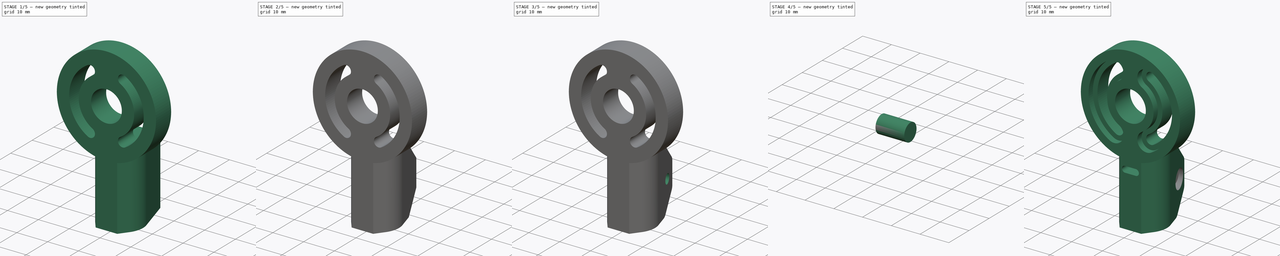
[diagram: build sequence overview — one tinted view per stage of 5, left to right]
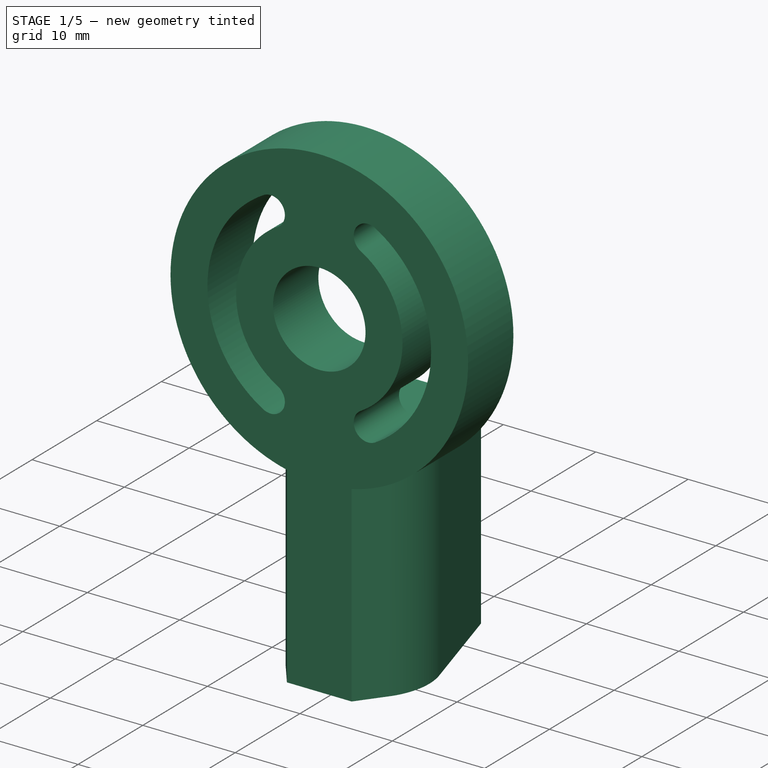
[diagram: stage 1 of 5 — iso view after this stage's code; geometry added in this stage tinted green]
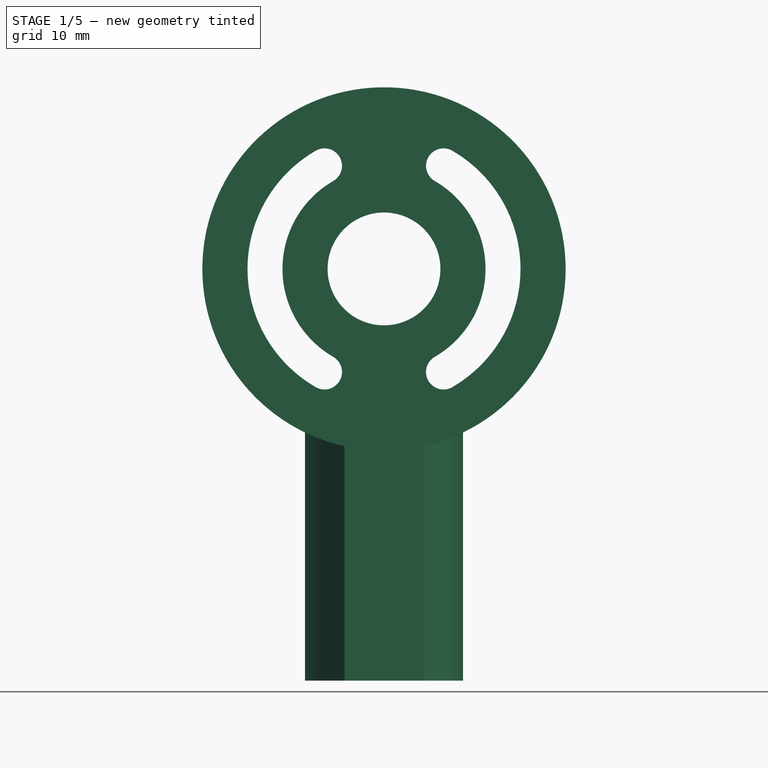
[diagram: stage 1 of 5 — front view after this stage's code; geometry added in this stage tinted green]
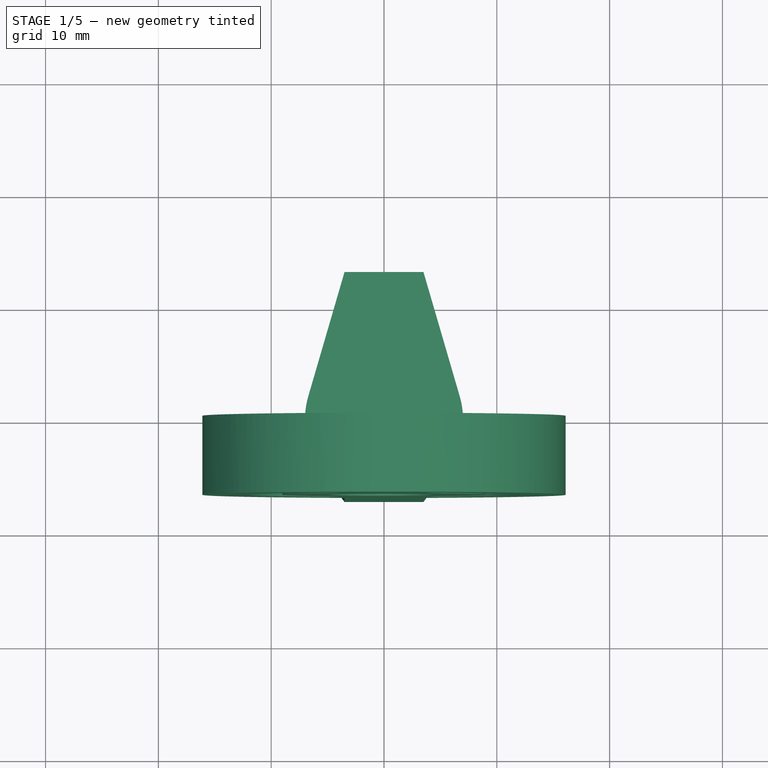
[diagram: stage 1 of 5 — top view after this stage's code; geometry added in this stage tinted green]
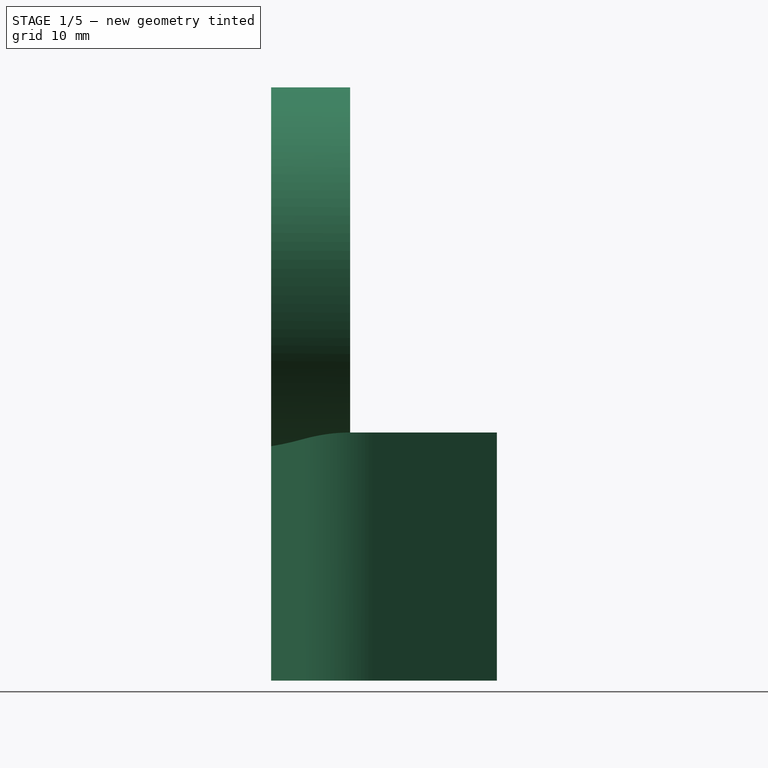
[diagram: stage 1 of 5 — right view after this stage's code; geometry added in this stage tinted green]
FCSTD DOCUMENT  (FreeCAD 0.16RUnknown)
Label: joint-i.007
License: All rights reserved
LicenseURL: http://en.wikipedia.org/wiki/All_rights_reserved
objects: Sketcher::SketchObject×11, PartDesign::Pocket×7, Part::Extrusion×4, Part::Cut×2, Part::MultiFuse×1, Part::Chamfer×1, Part::Fillet×1
note: 34 computed .brp shape members not serialized (recipe doc carries the construction recipe); baked Part::Feature solids carry a one-line shape summary decoded from their .brp

FEATURE [Sketcher::SketchObject] Sketch
  sketch-geometry (12):
    g0: Circle [constr] CenterX=0 CenterY=0 CenterZ=0 NormalX=0 NormalY=0 NormalZ=1 Radius=5
    g1: ArcOfCircle CenterX=0 CenterY=0 CenterZ=0 NormalX=0 NormalY=0 NormalZ=1 Radius=7 StartAngle=2.8578 EndAngle=3.78509
    g2: LineSegment [constr] StartX=5 StartY=0 StartZ=0 EndX=7 EndY=0 EndZ=0
    g3: LineSegment StartX=-6.72 StartY=1.96 StartZ=0 EndX=-3.5 EndY=13 EndZ=0
    g4: LineSegment StartX=-3.5 StartY=13 StartZ=0 EndX=3.5 EndY=13 EndZ=0
    g5: LineSegment StartX=3.5 StartY=13 StartZ=0 EndX=6.72 EndY=1.96 EndZ=0
    g6: LineSegment StartX=-5.60002 StartY=-4.19998 StartZ=0 EndX=-3.5 EndY=-7 EndZ=0
    g7: LineSegment StartX=-3.5 StartY=-7 StartZ=0 EndX=3.5 EndY=-7 EndZ=0
    g8: LineSegment StartX=3.5 StartY=-7 StartZ=0 EndX=5.60002 EndY=-4.19998 EndZ=0
    g9: ArcOfCircle CenterX=0 CenterY=0 CenterZ=0 NormalX=0 NormalY=0 NormalZ=1 Radius=7 StartAngle=5.63969 EndAngle=6.56698
    g10: LineSegment [constr] StartX=-7 StartY=0 StartZ=0 EndX=-5 EndY=0 EndZ=0
    g11: LineSegment [constr] StartX=0 StartY=-5 StartZ=0 EndX=0 EndY=-7 EndZ=0
  constraints (39):
    c: Coincident(g0,g-1)
    c: Radius(g0) = 5
    c: Horizontal(g2)
    c: PointOnObject(g2,g0)
    c: PointOnObject(g2,g1)
    c: PointOnObject(g2,g-1)
    c: DistanceX(g2,g2) = 2
    c: Coincident(g3,g4)
    c: Horizontal(g4)
    c: Coincident(g4,g5)
    c: DistanceX(g4,g4) = 7
    c: DistanceY(g-1,g3) = 13
    c: Tangent(g5,g1)
    c: Equal(g3,g5)
    c: Coincident(g1,g3)
    c: Tangent(g3,g1)
    c: Coincident(g9,g5)
    c: Coincident(g0,g1)
    c: Coincident(g6,g7)
    c: Horizontal(g7)
    c: Coincident(g7,g8)
    c: Equal(g6,g8)
    c: Equal(g7,g4)
    c: Tangent(g6,g1)
    c: Tangent(g8,g1)
    c: Equal(g1,g9)
    c: Coincident(g9,g8)
    c: Coincident(g1,g9)
    c: Coincident(g1,g6)
    c: Horizontal(g10)
    c: PointOnObject(g10,g0)
    c: PointOnObject(g10,g1)
    c: PointOnObject(g10,g-1)
    c: Equal(g10,g2)
    c: Vertical(g11)
    c: PointOnObject(g11,g0)
    c: PointOnObject(g11,g7)
    c: PointOnObject(g11,g-2)
    c: Equal(g11,g2)
FEATURE [Part::Extrusion] Extrude
  Base = -> Sketch
  Dir = (0,0,22)
  Solid = true
FEATURE [Sketcher::SketchObject] Sketch001
  Placement = pos=(0,0,0) rot=(1,0,0;1.5708rad)
  sketch-geometry (27):
    g0: Circle CenterX=0 CenterY=36.4986 CenterZ=0 NormalX=0 NormalY=0 NormalZ=1 Radius=5
    g1: Circle CenterX=0 CenterY=36.4986 CenterZ=0 NormalX=0 NormalY=0 NormalZ=1 Radius=16.1
    g2: ArcOfCircle CenterX=0 CenterY=36.4986 CenterZ=0 NormalX=0 NormalY=0 NormalZ=1 Radius=9 StartAngle=2.0944 EndAngle=4.18879
    g3: ArcOfCircle CenterX=0 CenterY=36.4986 CenterZ=0 NormalX=0 NormalY=0 NormalZ=1 Radius=12.1 StartAngle=2.0944 EndAngle=4.18879
    g4: ArcOfCircle CenterX=0 CenterY=36.4986 CenterZ=0 NormalX=0 NormalY=0 NormalZ=1 Radius=9 StartAngle=5.23599 EndAngle=7.33038
    g5: ArcOfCircle CenterX=0 CenterY=36.4986 CenterZ=0 NormalX=0 NormalY=0 NormalZ=1 Radius=12.1 StartAngle=5.23599 EndAngle=7.33038
    g6: ArcOfCircle [constr] CenterX=0 CenterY=36.4986 CenterZ=0 NormalX=0 NormalY=0 NormalZ=1 Radius=9 StartAngle=1.0472 EndAngle=2.0944
    g7: ArcOfCircle [constr] CenterX=0 CenterY=36.4986 CenterZ=0 NormalX=0 NormalY=0 NormalZ=1 Radius=12.1 StartAngle=1.0472 EndAngle=2.0944
    g8: ArcOfCircle [constr] CenterX=0 CenterY=36.4986 CenterZ=0 NormalX=0 NormalY=0 NormalZ=1 Radius=9 StartAngle=4.18879 EndAngle=5.23599
    g9: ArcOfCircle [constr] CenterX=0 CenterY=36.4986 CenterZ=0 NormalX=0 NormalY=0 NormalZ=1 Radius=12.1 StartAngle=4.18879 EndAngle=5.23599
    g10: LineSegment [constr] StartX=-6.05 StartY=26.0197 StartZ=0 EndX=-4.5 EndY=28.7044 EndZ=0
    g11: LineSegment [constr] StartX=-4.5 StartY=28.7044 StartZ=0 EndX=0 EndY=36.4986 EndZ=0
    g12: LineSegment [constr] StartX=0 StartY=36.4986 StartZ=0 EndX=2.5 EndY=40.8287 EndZ=0
    g13: LineSegment [constr] StartX=2.5 StartY=40.8287 StartZ=0 EndX=4.5 EndY=44.2928 EndZ=0
    g14: LineSegment [constr] StartX=4.5 StartY=44.2928 StartZ=0 EndX=6.05 EndY=46.9775 EndZ=0
    g15: LineSegment [constr] StartX=6.05 StartY=46.9775 StartZ=0 EndX=8.05 EndY=50.4416 EndZ=0
    g16: LineSegment [constr] StartX=-6.05 StartY=46.9775 StartZ=0 EndX=-4.5 EndY=44.2928 EndZ=0
    g17: LineSegment [constr] StartX=-4.5 StartY=44.2928 StartZ=0 EndX=0 EndY=36.4986 EndZ=0
    g18: LineSegment [constr] StartX=0 StartY=36.4986 StartZ=0 EndX=4.5 EndY=28.7044 EndZ=0
    g19: LineSegment [constr] StartX=4.5 StartY=28.7044 StartZ=0 EndX=6.05 EndY=26.0197 EndZ=0
    g20: LineSegment [constr] StartX=-4.5 StartY=44.2928 StartZ=0 EndX=4.5 EndY=44.2928 EndZ=0
    g21: ArcOfCircle CenterX=-5.275 CenterY=45.6352 CenterZ=0 NormalX=0 NormalY=0 NormalZ=1 Radius=1.55 StartAngle=5.23599 EndAngle=8.37758
    g22: ArcOfCircle CenterX=5.275 CenterY=45.6352 CenterZ=0 NormalX=0 NormalY=0 NormalZ=1 Radius=1.55 StartAngle=1.0472 EndAngle=4.18879
    g23: ArcOfCircle CenterX=-5.275 CenterY=27.3621 CenterZ=0 NormalX=0 NormalY=0 NormalZ=1 Radius=1.55 StartAngle=4.18879 EndAngle=7.33038
    g24: ArcOfCircle CenterX=5.275 CenterY=27.3621 CenterZ=0 NormalX=0 NormalY=0 NormalZ=1 Radius=1.55 StartAngle=2.0944 EndAngle=5.23599
    g25: LineSegment [constr] StartX=-7 StartY=22 StartZ=0 EndX=0 EndY=22 EndZ=0
    g26: LineSegment [constr] StartX=0 StartY=22 StartZ=0 EndX=7 EndY=22 EndZ=0
  constraints (74):
    c: Coincident(g0,g1)
    c: Coincident(g0,g2)
    c: Coincident(g0,g3)
    c: Coincident(g0,g4)
    c: Coincident(g0,g5)
    c: Coincident(g0,g6)
    c: Coincident(g0,g7)
    c: Coincident(g0,g8)
    c: Coincident(g0,g9)
    c: PointOnObject(g0,g-2)
    c: Coincident(g3,g7)
    c: Coincident(g2,g6)
    c: Coincident(g5,g7)
    c: Coincident(g4,g6)
    c: Coincident(g2,g8)
    c: Coincident(g3,g9)
    c: Coincident(g5,g9)
    c: Coincident(g4,g8)
    c: Coincident(g10,g11)
    c: Coincident(g11,g12)
    c: Coincident(g12,g13)
    c: Coincident(g13,g14)
    c: Coincident(g14,g15)
    c: Coincident(g3,g10)
    c: Coincident(g2,g10)
    c: Coincident(g4,g13)
    c: Coincident(g5,g14)
    c: PointOnObject(g15,g1)
    c: PointOnObject(g12,g0)
    c: Coincident(g16,g17)
    c: Coincident(g17,g18)
    c: Coincident(g18,g19)
    c: Coincident(g3,g16)
    c: Coincident(g2,g16)
    c: Coincident(g0,g11)
    c: Coincident(g0,g17)
    c: Coincident(g4,g18)
    c: Coincident(g5,g19)
    c: Parallel(g10,g11)
    c: Parallel(g11,g12)
    c: Parallel(g12,g13)
    c: Parallel(g13,g14)
    c: Parallel(g14,g15)
    c: Parallel(g16,g17)
    c: Parallel(g17,g18)
    c: Parallel(g18,g19)
    c: Horizontal(g20)
    c: Coincident(g2,g20)
    c: Coincident(g4,g20)
    c: Equal(g13,g15)
    c: Distance(g14) = 3.1
    c: Distance(g15) = 4
    c: Angle(g12,g17) = 1.0472
    c: Radius(g0) = 5
    c: Coincident(g2,g23)
    c: Coincident(g3,g23)
    c: Coincident(g4,g24)
    c: Coincident(g5,g24)
    c: PointOnObject(g24,g19)
    c: PointOnObject(g23,g10)
    c: Coincident(g3,g21)
    c: Coincident(g2,g21)
    c: PointOnObject(g21,g16)
    c: Coincident(g5,g22)
    c: Coincident(g4,g22)
    c: PointOnObject(g22,g14)
    c: Horizontal(g25)
    c: Coincident(g25,g26)
    c: Horizontal(g26)
    c: Equal(g25,g26)
    c: PointOnObject(g25,g-2)
    c: DistanceX(g25,g26) = 14
    c: DistanceY(g-1,g25) = 22
    c: PointOnObject(g25,g1)
FEATURE [Part::Extrusion] Extrude001
  Base = -> Sketch001
  Dir = (0,-7,0)
  Solid = true
FEATURE [Part::MultiFuse] Fusion
  Shapes = -> [Extrude,Extrude001]
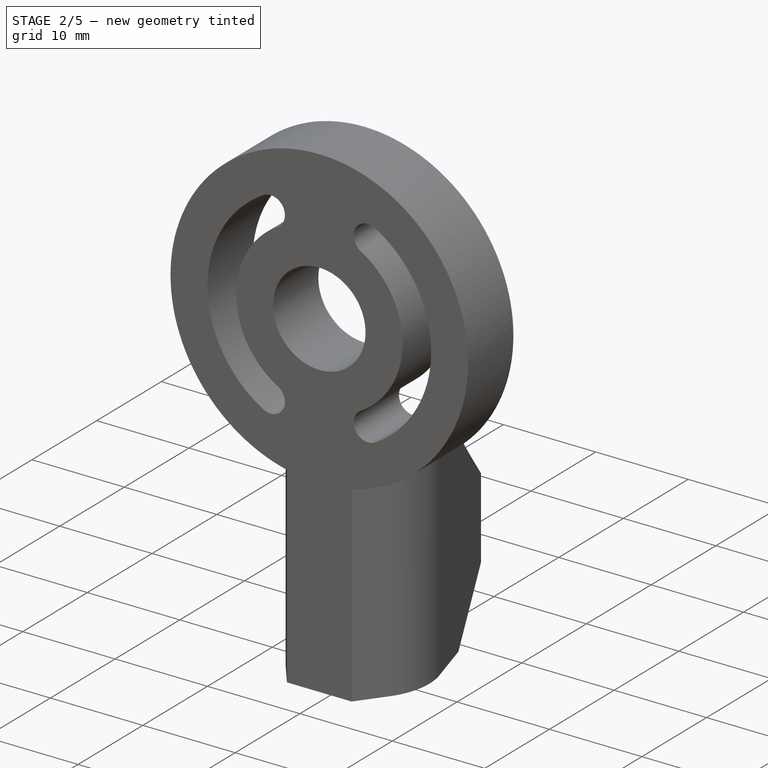
[diagram: stage 2 of 5 — iso view after this stage's code; geometry added in this stage tinted green]
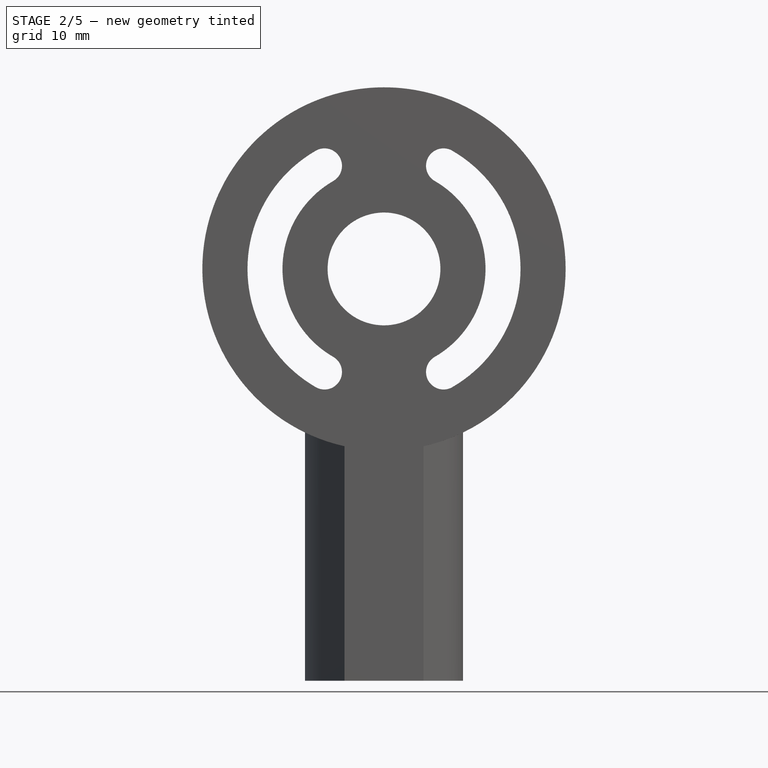
[diagram: stage 2 of 5 — front view after this stage's code; geometry added in this stage tinted green]
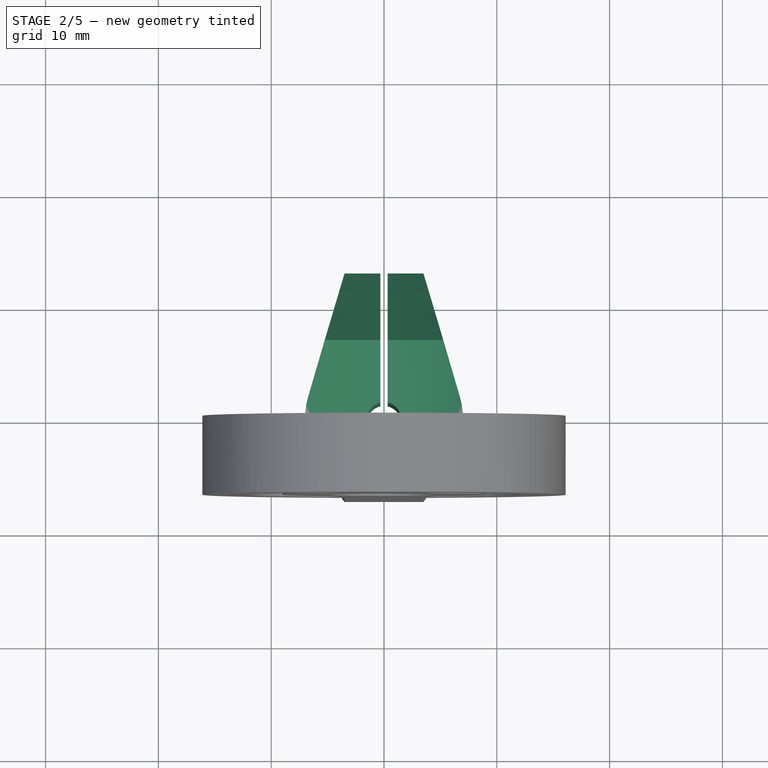
[diagram: stage 2 of 5 — top view after this stage's code; geometry added in this stage tinted green]
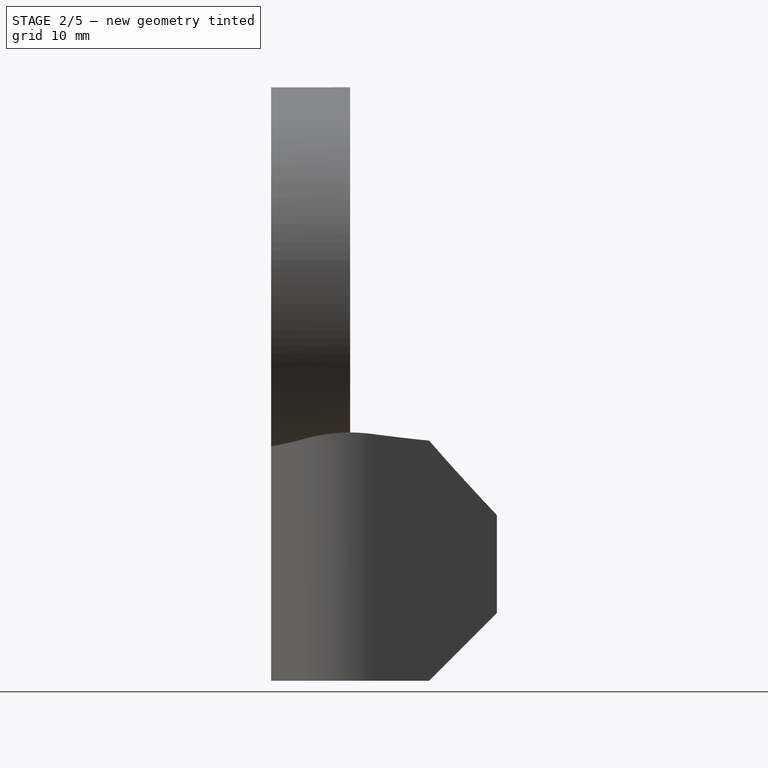
[diagram: stage 2 of 5 — right view after this stage's code; geometry added in this stage tinted green]
FEATURE [Sketcher::SketchObject] Sketch002
  ExternalGeometry = -> [Fusion]
  Placement = pos=(0,0,0) rot=(0,0.707107,0.707107;3.14159rad)
  Support = -> Fusion [Face14]
  sketch-geometry (2):
    g0: ArcOfCircle CenterX=0 CenterY=36.4986 CenterZ=0 NormalX=0 NormalY=0 NormalZ=1 Radius=16.1 StartAngle=4.26259 EndAngle=5.16219
    g1: LineSegment StartX=-7 StartY=22 StartZ=0 EndX=7 EndY=22 EndZ=0
  constraints (7):
    c: Coincident(g0,g-3)
    c: Coincident(g0,g-4)
    c: Coincident(g0,g-4)
    c: Coincident(g0,g-3)
    c: Horizontal(g1)
    c: Coincident(g0,g1)
    c: Coincident(g0,g1)
FEATURE [PartDesign::Pocket] Pocket
  Length = 5
  Reversed = true
  Sketch = -> Sketch002
  Type = 1
FEATURE [Sketcher::SketchObject] Sketch003
  ExternalGeometry = -> [Pocket]
  Placement = pos=(0,0,0) rot=(1,0,0;3.14159rad)
  Support = -> Pocket [Face1]
  sketch-geometry (7):
    g0: LineSegment StartX=-1.5 StartY=0 StartZ=0 EndX=1.5 EndY=0 EndZ=0
    g1: LineSegment StartX=-0.325 StartY=-13 StartZ=0 EndX=0.325 EndY=-13 EndZ=0
    g2: LineSegment StartX=0.325 StartY=-13 StartZ=0 EndX=0.325 EndY=-1.46437 EndZ=0
    g3: LineSegment [constr] StartX=0.325 StartY=-1.46437 StartZ=0 EndX=-0.325 EndY=-1.46437 EndZ=0
    g4: LineSegment StartX=-0.325 StartY=-1.46437 StartZ=0 EndX=-0.325 EndY=-13 EndZ=0
    g5: ArcOfCircle CenterX=0 CenterY=0 CenterZ=0 NormalX=0 NormalY=0 NormalZ=1 Radius=1.5 StartAngle=3.14159 EndAngle=4.49399
    g6: ArcOfCircle CenterX=0 CenterY=0 CenterZ=0 NormalX=0 NormalY=0 NormalZ=1 Radius=1.5 StartAngle=4.93079 EndAngle=6.28319
  constraints (20):
    c: Horizontal(g0)
    c: Coincident(g1,g2)
    c: Coincident(g2,g3)
    c: Coincident(g3,g4)
    c: Coincident(g4,g1)
    c: Horizontal(g1)
    c: Horizontal(g3)
    c: Vertical(g2)
    c: Vertical(g4)
    c: Coincident(g5,g6)
    c: Coincident(g5,g-1)
    c: Coincident(g0,g5)
    c: Coincident(g3,g5)
    c: Coincident(g2,g6)
    c: Coincident(g0,g6)
    c: PointOnObject(g0,g-1)
    c: PointOnObject(g1,g-3)
    c: DistanceX(g1,g1) = 0.65
    c: Equal(g6,g5)
    c: Radius(g6) = 1.5
FEATURE [PartDesign::Pocket] Pocket001
  Length = 5
  Sketch = -> Sketch003
  Type = 1
FEATURE [Part::Chamfer] Chamfer
  Base = -> Pocket001
  Edges = 4 edges r=6: [Edge2,Edge8,Edge19,Edge32]
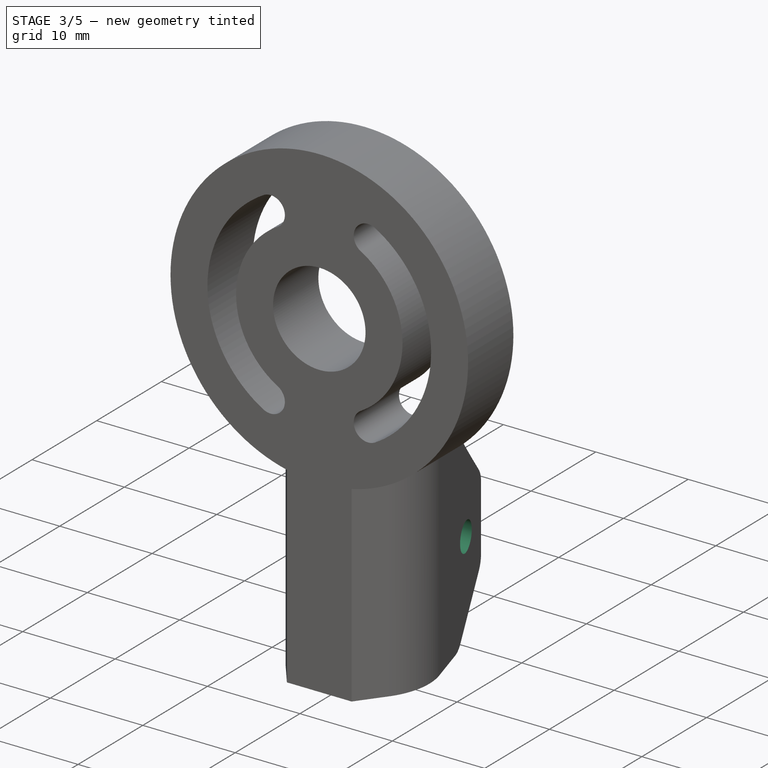
[diagram: stage 3 of 5 — iso view after this stage's code; geometry added in this stage tinted green]
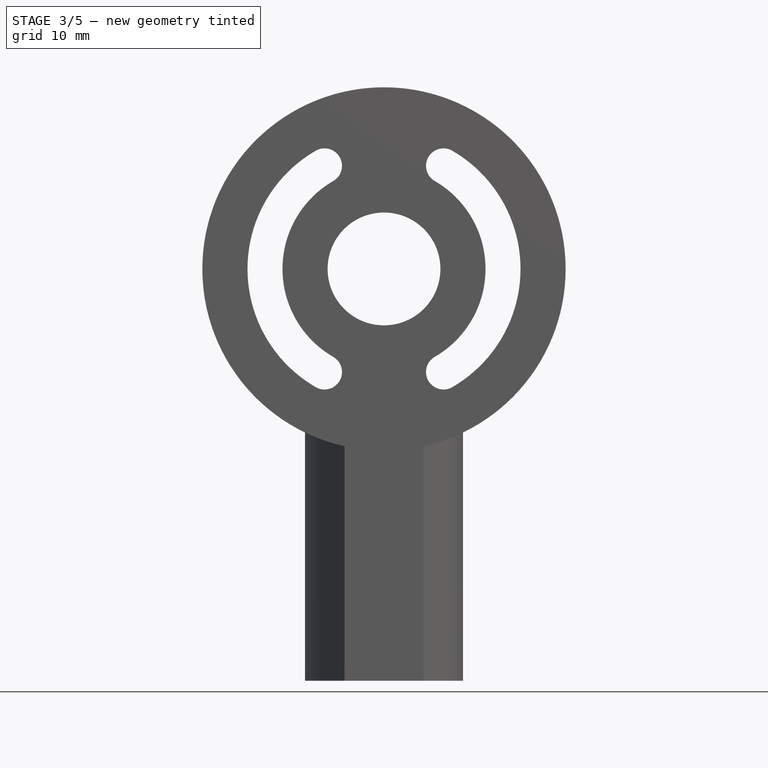
[diagram: stage 3 of 5 — front view after this stage's code; geometry added in this stage tinted green]
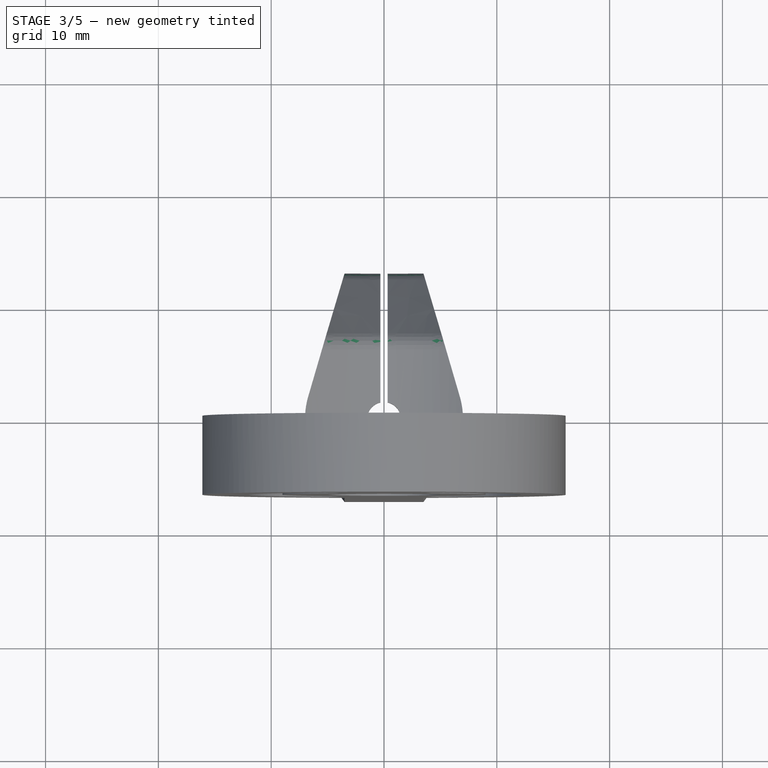
[diagram: stage 3 of 5 — top view after this stage's code; geometry added in this stage tinted green]
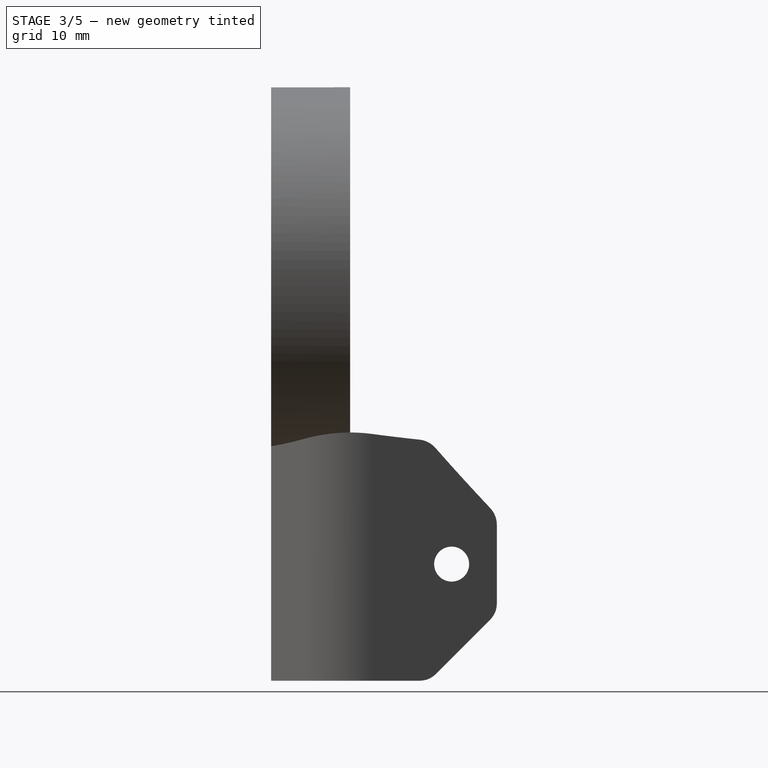
[diagram: stage 3 of 5 — right view after this stage's code; geometry added in this stage tinted green]
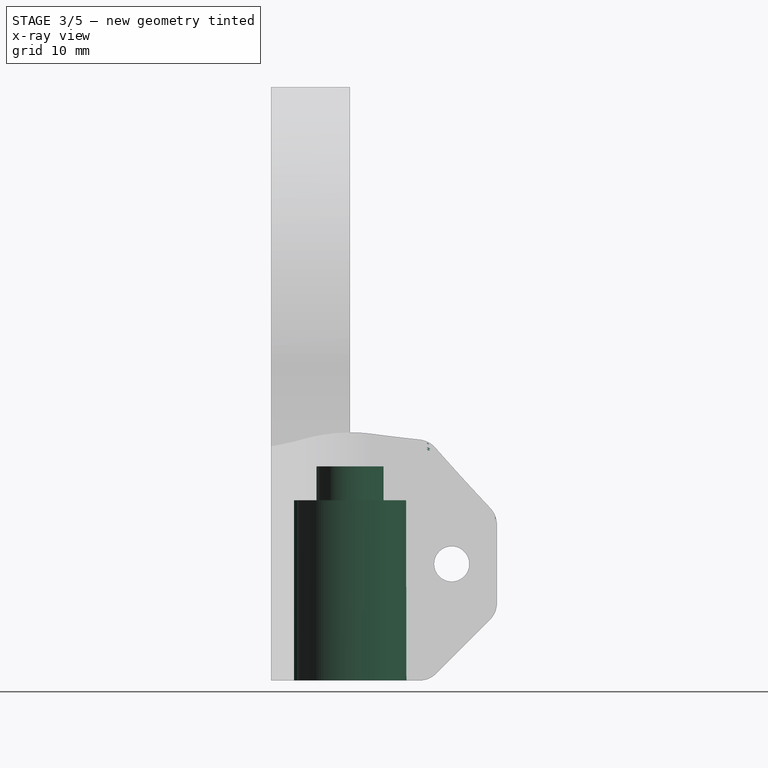
[diagram: stage 3 of 5 — x-ray composite at the right view; earlier geometry ghosted, this stage's added geometry solid]
FEATURE [Part::Fillet] Fillet
  Base = -> Chamfer
  Edges = 8 edges r=2: [Edge2,Edge14,Edge20,Edge53,Edge54,Edge55,Edge70,Edge72]
FEATURE [Sketcher::SketchObject] Sketch004
  ExternalGeometry = -> [Fillet]
  Placement = pos=(0,0,0) rot=(1,0,0;3.14159rad)
  Support = -> Fillet [Face1]
  sketch-geometry (2):
    g0: LineSegment [constr] StartX=5 StartY=0 StartZ=0 EndX=7 EndY=0 EndZ=0
    g1: Circle CenterX=0 CenterY=0 CenterZ=0 NormalX=0 NormalY=0 NormalZ=1 Radius=5
  constraints (6):
    c: Horizontal(g0)
    c: Coincident(g1,g-3)
    c: PointOnObject(g0,g1)
    c: PointOnObject(g0,g-3)
    c: PointOnObject(g0,g-1)
    c: DistanceX(g0,g0) = 2
FEATURE [PartDesign::Pocket] Pocket002
  Length = 16
  Sketch = -> Sketch004
  Type = 0
FEATURE [Sketcher::SketchObject] Sketch005
  ExternalGeometry = -> [Pocket002]
  Placement = pos=(0.325,0,0) rot=(0.57735,-0.57735,-0.57735;2.0944rad)
  Support = -> Pocket002 [Face6]
  sketch-geometry (5):
    g0: LineSegment [constr] StartX=-13 StartY=13.8389 StartZ=0 EndX=-13 EndY=10.3337 EndZ=0
    g1: LineSegment [constr] StartX=-13 StartY=10.3337 StartZ=0 EndX=-8.99471 EndY=10.3337 EndZ=0
    g2: LineSegment [constr] StartX=-8.99471 StartY=10.3337 StartZ=0 EndX=-4.98943 EndY=10.3337 EndZ=0
    g3: LineSegment [constr] StartX=-13 StartY=10.3337 StartZ=0 EndX=-13 EndY=6.82843 EndZ=0
    g4: Circle CenterX=-8.99471 CenterY=10.3337 CenterZ=0 NormalX=0 NormalY=0 NormalZ=1 Radius=1.55
  constraints (14):
    c: Vertical(g0)
    c: Coincident(g0,g1)
    c: Horizontal(g1)
    c: Coincident(g1,g2)
    c: Horizontal(g2)
    c: Vertical(g3)
    c: Coincident(g0,g3)
    c: Equal(g3,g0)
    c: Equal(g2,g1)
    c: Coincident(g0,g-4)
    c: Coincident(g3,g-4)
    c: PointOnObject(g2,g-3)
    c: Coincident(g1,g4)
    c: Radius(g4) = 1.55
FEATURE [PartDesign::Pocket] Pocket003
  Length = 5
  Midplane = true
  Sketch = -> Sketch005
  Type = 1
FEATURE [Sketcher::SketchObject] Sketch006
  ExternalGeometry = -> [Pocket003]
  Placement = pos=(0,0,16) rot=(1,0,0;3.14159rad)
  Support = -> Pocket003 [Face16]
  sketch-geometry (2):
    g0: LineSegment [constr] StartX=5 StartY=0 StartZ=0 EndX=3 EndY=0 EndZ=0
    g1: Circle CenterX=0 CenterY=0 CenterZ=0 NormalX=0 NormalY=0 NormalZ=1 Radius=3
  constraints (5):
    c: Horizontal(g0)
    c: Coincident(g1,g-3)
    c: PointOnObject(g0,g1)
    c: Coincident(g0,g-3)
    c: DistanceX(g0,g0) = 2
FEATURE [PartDesign::Pocket] Pocket004
  Length = 3
  Sketch = -> Sketch006
  Type = 0
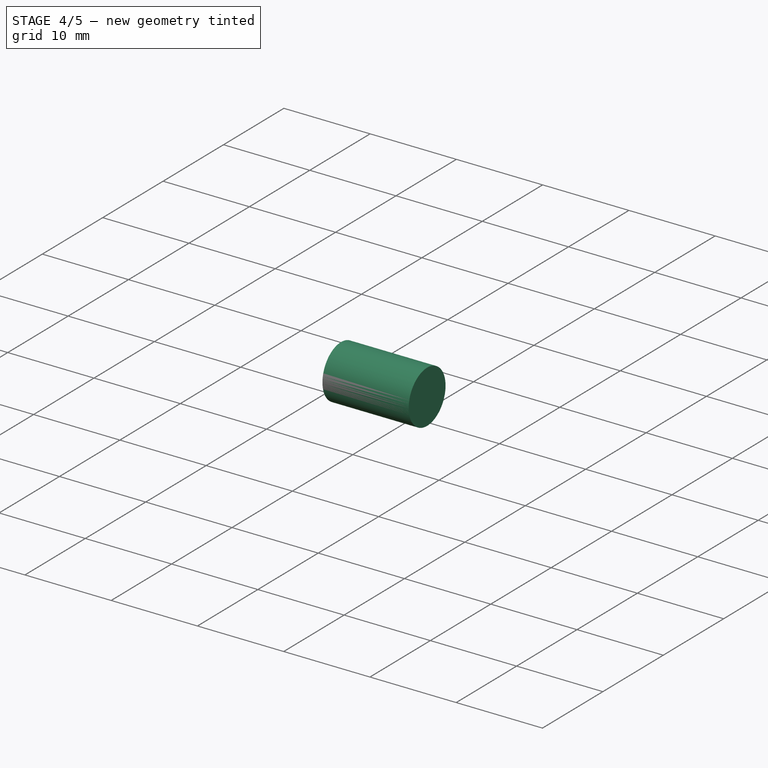
[diagram: stage 4 of 5 — iso view after this stage's code; geometry added in this stage tinted green]
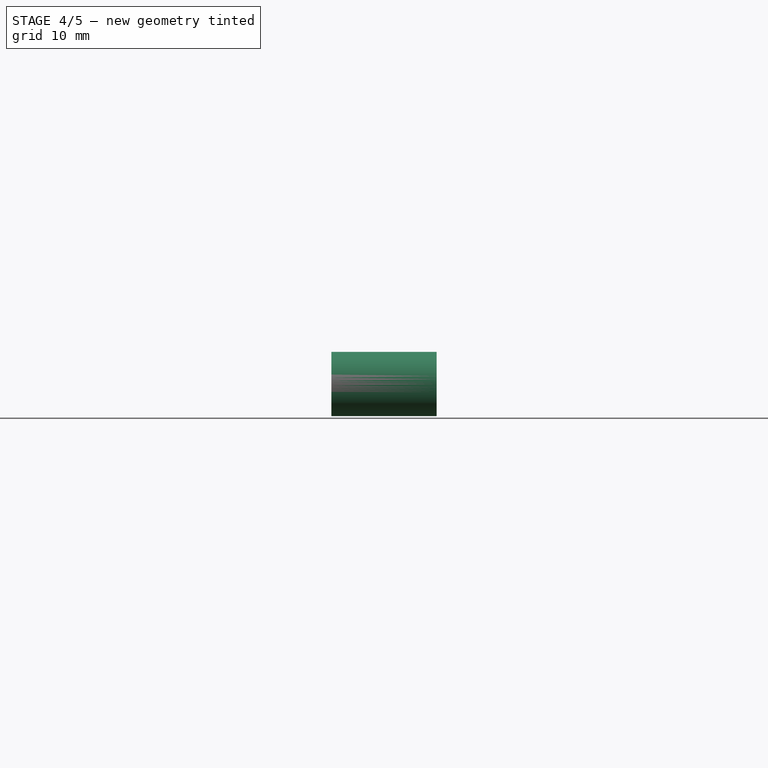
[diagram: stage 4 of 5 — front view after this stage's code; geometry added in this stage tinted green]
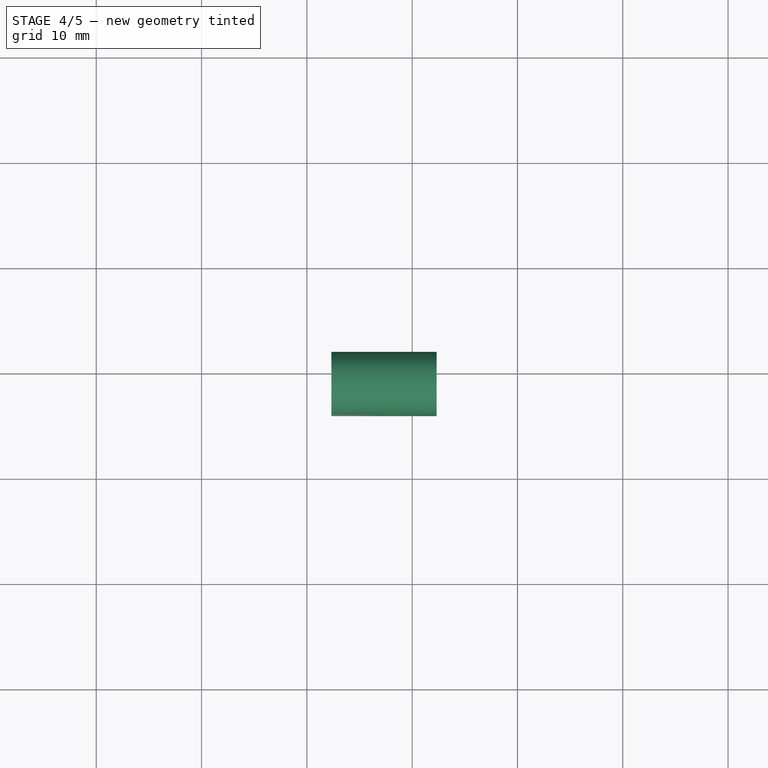
[diagram: stage 4 of 5 — top view after this stage's code; geometry added in this stage tinted green]
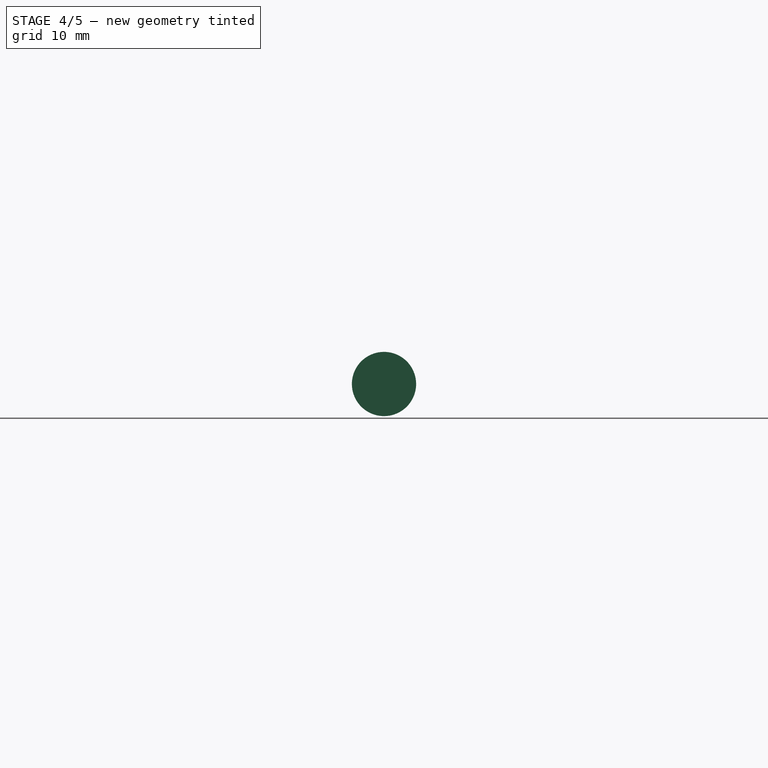
[diagram: stage 4 of 5 — right view after this stage's code; geometry added in this stage tinted green]
FEATURE [Sketcher::SketchObject] Sketch007
  ExternalGeometry = -> [Pocket004]
  Placement = pos=(0,-7,0) rot=(1,0,0;1.5708rad)
  Support = -> Pocket004 [Face11]
  sketch-geometry (8):
    g0: LineSegment [constr] StartX=-3.5 StartY=20.7837 StartZ=0 EndX=-1.75 EndY=18.5337 EndZ=0
    g1: LineSegment [constr] StartX=1.75 StartY=18.5337 StartZ=0 EndX=3.5 EndY=20.7837 EndZ=0
    g2: LineSegment StartX=-1.75 StartY=18.5337 StartZ=0 EndX=1.75 EndY=18.5337 EndZ=0
    g3: LineSegment [constr] StartX=1.75 StartY=18.5337 StartZ=0 EndX=1.75 EndY=16.5337 EndZ=0
    g4: LineSegment StartX=1.75 StartY=16.5337 StartZ=0 EndX=-1.75 EndY=16.5337 EndZ=0
    g5: LineSegment [constr] StartX=-1.75 StartY=16.5337 StartZ=0 EndX=-1.75 EndY=18.5337 EndZ=0
    g6: ArcOfCircle CenterX=-1.75 CenterY=17.5337 CenterZ=0 NormalX=0 NormalY=0 NormalZ=1 Radius=1 StartAngle=1.5708 EndAngle=4.71239
    g7: ArcOfCircle CenterX=1.75 CenterY=17.5337 CenterZ=0 NormalX=0 NormalY=0 NormalZ=1 Radius=1 StartAngle=4.71239 EndAngle=7.85398
  constraints (22):
    c: Coincident(g2,g3)
    c: Coincident(g3,g4)
    c: Coincident(g4,g5)
    c: Coincident(g5,g2)
    c: Horizontal(g2)
    c: Horizontal(g4)
    c: Vertical(g3)
    c: Vertical(g5)
    c: Coincident(g1,g2)
    c: Coincident(g0,g2)
    c: Coincident(g0,g-3)
    c: Coincident(g1,g-3)
    c: Equal(g1,g0)
    c: Coincident(g1,g7)
    c: Coincident(g3,g7)
    c: PointOnObject(g7,g3)
    c: Coincident(g0,g6)
    c: Coincident(g4,g6)
    c: PointOnObject(g6,g5)
    c: DistanceY(g1,g1) = 2.25
    c: DistanceY(g3,g3) = 2
    c: DistanceX(g4,g4) = 3.5
FEATURE [PartDesign::Pocket] Pocket005
  Length = 7
  Sketch = -> Sketch007
  Type = 0
FEATURE [Sketcher::SketchObject] Sketch008
  ExternalGeometry = -> [Pocket005]
  Placement = pos=(0,-7,0) rot=(1,0,0;1.5708rad)
  Support = -> Pocket005 [Face48]
  sketch-geometry (24):
    g0: LineSegment [constr] StartX=-6.8 StartY=48.2766 StartZ=0 EndX=-6.05 EndY=46.9775 EndZ=0
    g1: LineSegment [constr] StartX=-6.05 StartY=46.9775 StartZ=0 EndX=-4.5 EndY=44.2928 EndZ=0
    g2: LineSegment [constr] StartX=-4.5 StartY=44.2928 StartZ=0 EndX=-3.75 EndY=42.9938 EndZ=0
    g3: LineSegment [constr] StartX=-3.75 StartY=42.9938 StartZ=0 EndX=0 EndY=36.4986 EndZ=0
    g4: LineSegment [constr] StartX=0 StartY=36.4986 StartZ=0 EndX=3.75 EndY=30.0034 EndZ=0
    g5: LineSegment [constr] StartX=3.75 StartY=30.0034 StartZ=0 EndX=4.5 EndY=28.7044 EndZ=0
    g6: LineSegment [constr] StartX=4.5 StartY=28.7044 StartZ=0 EndX=6.05 EndY=26.0197 EndZ=0
    g7: LineSegment [constr] StartX=6.05 StartY=26.0197 StartZ=0 EndX=6.8 EndY=24.7207 EndZ=0
    g8: LineSegment [constr] StartX=-6.8 StartY=24.7207 StartZ=0 EndX=-6.05 EndY=26.0197 EndZ=0
    g9: LineSegment [constr] StartX=-6.05 StartY=26.0197 StartZ=0 EndX=-4.5 EndY=28.7044 EndZ=0
    g10: LineSegment [constr] StartX=-4.5 StartY=28.7044 StartZ=0 EndX=-3.75 EndY=30.0034 EndZ=0
    g11: LineSegment [constr] StartX=-3.75 StartY=30.0034 StartZ=0 EndX=0 EndY=36.4986 EndZ=0
    g12: LineSegment [constr] StartX=0 StartY=36.4986 StartZ=0 EndX=3.75 EndY=42.9938 EndZ=0
    g13: LineSegment [constr] StartX=3.75 StartY=42.9938 StartZ=0 EndX=4.5 EndY=44.2928 EndZ=0
    g14: LineSegment [constr] StartX=4.5 StartY=44.2928 StartZ=0 EndX=6.05 EndY=46.9775 EndZ=0
    g15: LineSegment [constr] StartX=6.05 StartY=46.9775 StartZ=0 EndX=6.8 EndY=48.2766 EndZ=0
    g16: ArcOfCircle CenterX=0 CenterY=36.4986 CenterZ=0 NormalX=0 NormalY=0 NormalZ=1 Radius=7.5 StartAngle=2.0944 EndAngle=4.18879
    g17: ArcOfCircle CenterX=0 CenterY=36.4986 CenterZ=0 NormalX=0 NormalY=0 NormalZ=1 Radius=7.5 StartAngle=5.23599 EndAngle=7.33038
    g18: ArcOfCircle CenterX=0 CenterY=36.4986 CenterZ=0 NormalX=0 NormalY=0 NormalZ=1 Radius=13.6 StartAngle=2.0944 EndAngle=4.18879
    g19: ArcOfCircle CenterX=0 CenterY=36.4986 CenterZ=0 NormalX=0 NormalY=0 NormalZ=1 Radius=13.6 StartAngle=5.23599 EndAngle=7.33038
    g20: ArcOfCircle CenterX=5.275 CenterY=27.3621 CenterZ=0 NormalX=0 NormalY=0 NormalZ=1 Radius=3.05 StartAngle=2.0944 EndAngle=5.23599
    g21: ArcOfCircle CenterX=-5.275 CenterY=27.3621 CenterZ=0 NormalX=0 NormalY=0 NormalZ=1 Radius=3.05 StartAngle=4.18879 EndAngle=7.33038
    g22: ArcOfCircle CenterX=-5.275 CenterY=45.6352 CenterZ=0 NormalX=0 NormalY=0 NormalZ=1 Radius=3.05 StartAngle=5.23599 EndAngle=8.37758
    g23: ArcOfCircle CenterX=5.275 CenterY=45.6352 CenterZ=0 NormalX=0 NormalY=0 NormalZ=1 Radius=3.05 StartAngle=1.0472 EndAngle=4.18879
  constraints (64):
    c: Coincident(g0,g1)
    c: Coincident(g1,g2)
    c: Coincident(g2,g3)
    c: Coincident(g3,g4)
    c: Coincident(g4,g5)
    c: Coincident(g5,g6)
    c: Coincident(g6,g7)
    c: Coincident(g8,g9)
    c: Coincident(g9,g10)
    c: Coincident(g10,g11)
    c: Coincident(g11,g12)
    c: Coincident(g12,g13)
    c: Coincident(g13,g14)
    c: Coincident(g14,g15)
    c: Coincident(g-6,g3)
    c: Coincident(g-6,g11)
    c: Coincident(g8,g-4)
    c: Coincident(g9,g-3)
    c: Coincident(g5,g-5)
    c: Coincident(g6,g-6)
    c: Coincident(g1,g-3)
    c: Coincident(g0,g-4)
    c: Coincident(g13,g-5)
    c: Coincident(g14,g-6)
    c: Parallel(g8,g9)
    c: Parallel(g10,g11)
    c: Parallel(g12,g13)
    c: Parallel(g14,g15)
    c: Parallel(g0,g1)
    c: Parallel(g1,g2)
    c: Parallel(g3,g4)
    c: Parallel(g6,g7)
    c: Equal(g0,g2)
    c: Equal(g2,g8)
    c: Equal(g8,g10)
    c: Equal(g10,g13)
    c: Equal(g13,g15)
    c: Equal(g15,g5)
    c: Equal(g5,g7)
    c: Distance(g2,g0) = 6.1
    c: Coincident(g0,g18)
    c: Coincident(g0,g22)
    c: Coincident(g2,g16)
    c: Coincident(g2,g22)
    c: PointOnObject(g22,g1)
    c: Coincident(g10,g16)
    c: Coincident(g10,g21)
    c: Coincident(g8,g21)
    c: Coincident(g8,g18)
    c: PointOnObject(g21,g9)
    c: Coincident(g4,g17)
    c: Coincident(g4,g20)
    c: Coincident(g7,g19)
    c: Coincident(g7,g20)
    c: PointOnObject(g20,g6)
    c: Coincident(g12,g17)
    c: Coincident(g12,g23)
    c: Coincident(g15,g19)
    c: Coincident(g15,g23)
    c: PointOnObject(g23,g14)
    c: Coincident(g19,g17)
    c: Coincident(g19,g3)
    c: Coincident(g19,g16)
    c: Coincident(g19,g18)
FEATURE [PartDesign::Pocket] Pocket006
  Length = 2
  Sketch = -> Sketch008
  Type = 0
FEATURE [Sketcher::SketchObject] Sketch009
  ExternalGeometry = -> [Pocket006]
  Placement = pos=(0.325,0,0) rot=(0.57735,-0.57735,-0.57735;2.0944rad)
  Support = -> Pocket006 [Face6]
  sketch-geometry (1):
    g0: Circle CenterX=-8.99471 CenterY=10.3337 CenterZ=0 NormalX=0 NormalY=0 NormalZ=1 Radius=3.05
  constraints (2):
    c: Coincident(g0,g-3)
    c: Radius(g0) = 3.05
FEATURE [Part::Extrusion] Extrude002
  Base = -> Sketch009
  Dir = (10,0,0)
  Placement = pos=(2,0,0) rot=(0,0,1;0rad)
  Solid = true
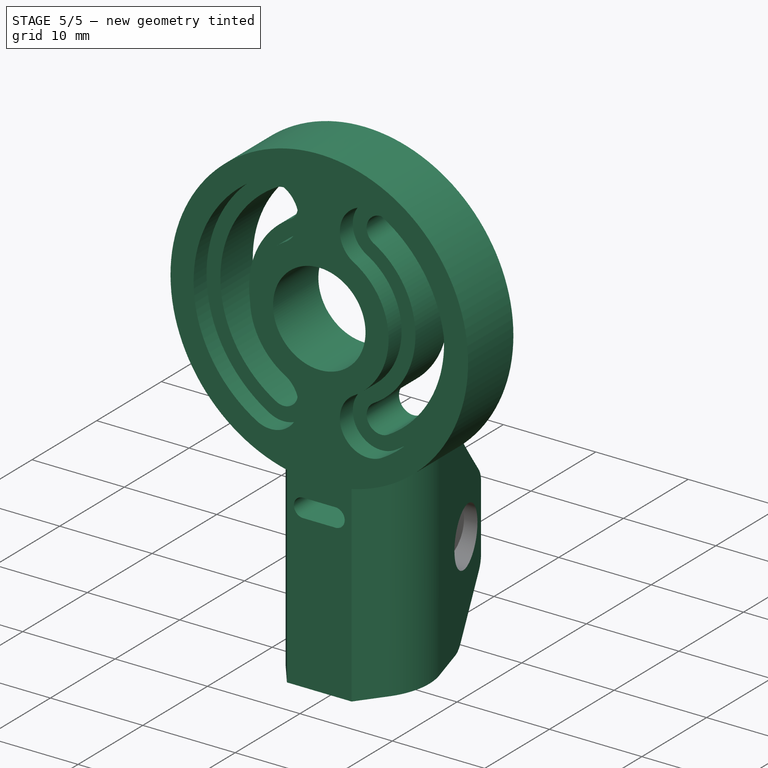
[diagram: stage 5 of 5 — iso view after this stage's code; geometry added in this stage tinted green]
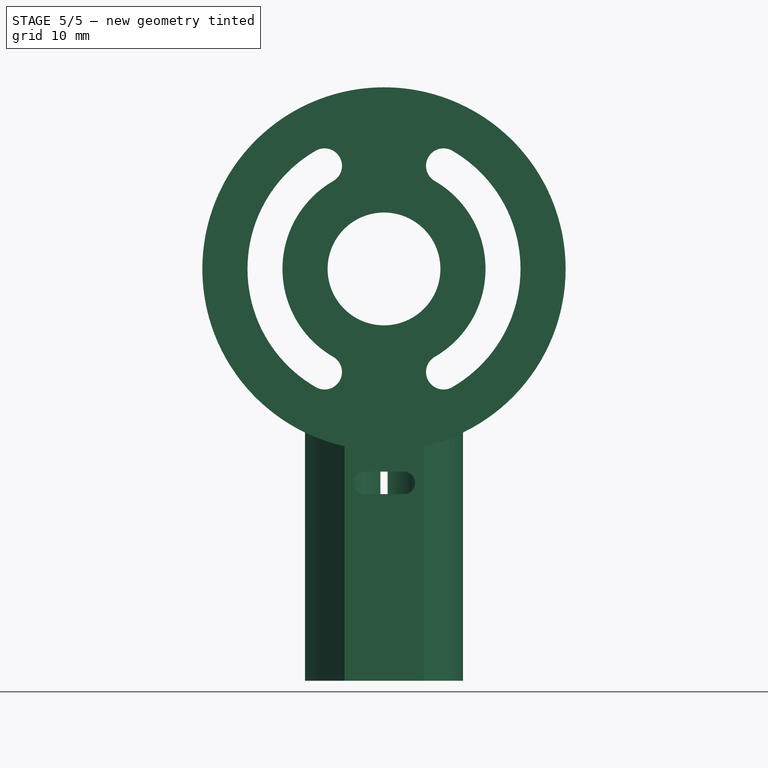
[diagram: stage 5 of 5 — front view after this stage's code; geometry added in this stage tinted green]
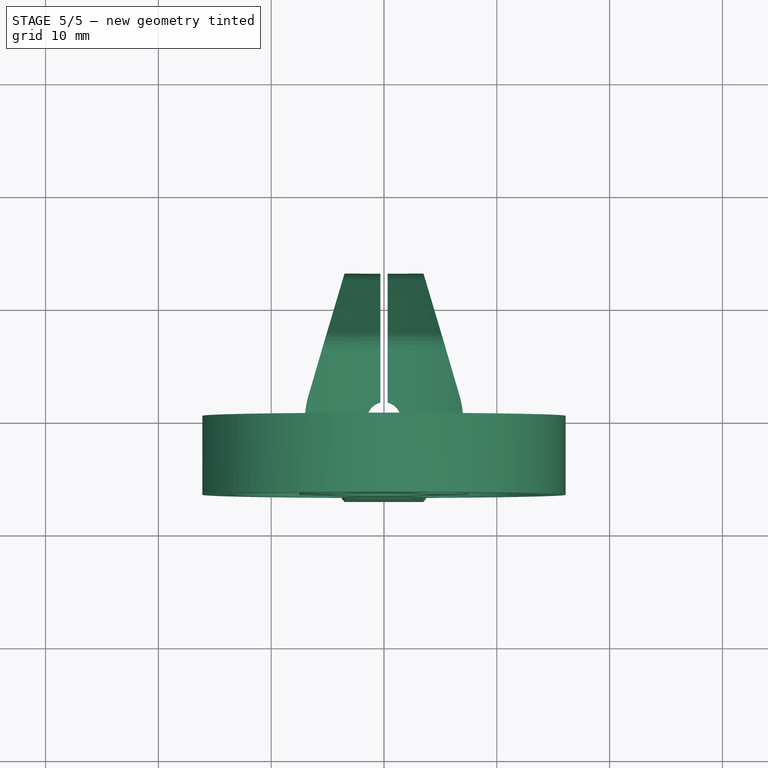
[diagram: stage 5 of 5 — top view after this stage's code; geometry added in this stage tinted green]
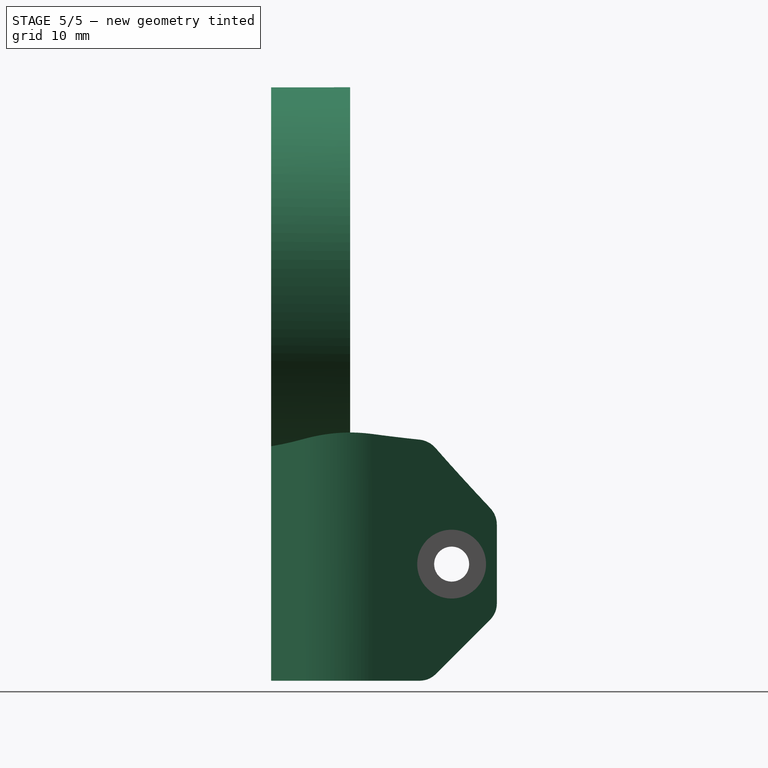
[diagram: stage 5 of 5 — right view after this stage's code; geometry added in this stage tinted green]
FEATURE [Part::Cut] Cut
  Base = -> Pocket006
  Tool = -> Extrude002
FEATURE [Sketcher::SketchObject] Sketch010
  ExternalGeometry = -> [Cut]
  Placement = pos=(-0.325,0,0) rot=(0.57735,0.57735,0.57735;2.0944rad)
  Support = -> Cut [Face3]
  sketch-geometry (7):
    g0: LineSegment StartX=8.99471 StartY=13.3837 StartZ=0 EndX=6.35334 EndY=11.8587 EndZ=0
    g1: LineSegment StartX=6.35334 StartY=11.8587 StartZ=0 EndX=6.35334 EndY=8.80867 EndZ=0
    g2: LineSegment StartX=6.35334 StartY=8.80867 StartZ=0 EndX=8.99471 EndY=7.28367 EndZ=0
    g3: LineSegment StartX=8.99471 StartY=7.28367 StartZ=0 EndX=11.6361 EndY=8.80867 EndZ=0
    g4: LineSegment StartX=11.6361 StartY=8.80867 StartZ=0 EndX=11.6361 EndY=11.8587 EndZ=0
    g5: LineSegment StartX=11.6361 StartY=11.8587 StartZ=0 EndX=8.99471 EndY=13.3837 EndZ=0
    g6: Circle [constr] CenterX=8.99471 CenterY=10.3337 CenterZ=0 NormalX=0 NormalY=0 NormalZ=1 Radius=3.05
  constraints (16):
    c: Coincident(g0,g1)
    c: Coincident(g1,g2)
    c: Coincident(g2,g3)
    c: Coincident(g3,g4)
    c: Coincident(g4,g5)
    c: Coincident(g5,g0)
    c: Equal(g0, g1-g5) x5
    c: PointOnObject(g0,g6)
    c: PointOnObject(g1,g6)
    c: PointOnObject(g2,g6)
    c: PointOnObject(g3,g6)
    c: PointOnObject(g4,g6)
    c: PointOnObject(g5,g6)
    c: Vertical(g4)
    c: Coincident(g6,g-3)
    c: Radius(g6) = 3.05
FEATURE [Part::Extrusion] Extrude003
  Base = -> Sketch010
  Dir = (-10,0,0)
  Placement = pos=(-2,0,0) rot=(0,0,1;0rad)
  Solid = true
FEATURE [Part::Cut] Cut001
  Base = -> Cut
  Tool = -> Extrude003
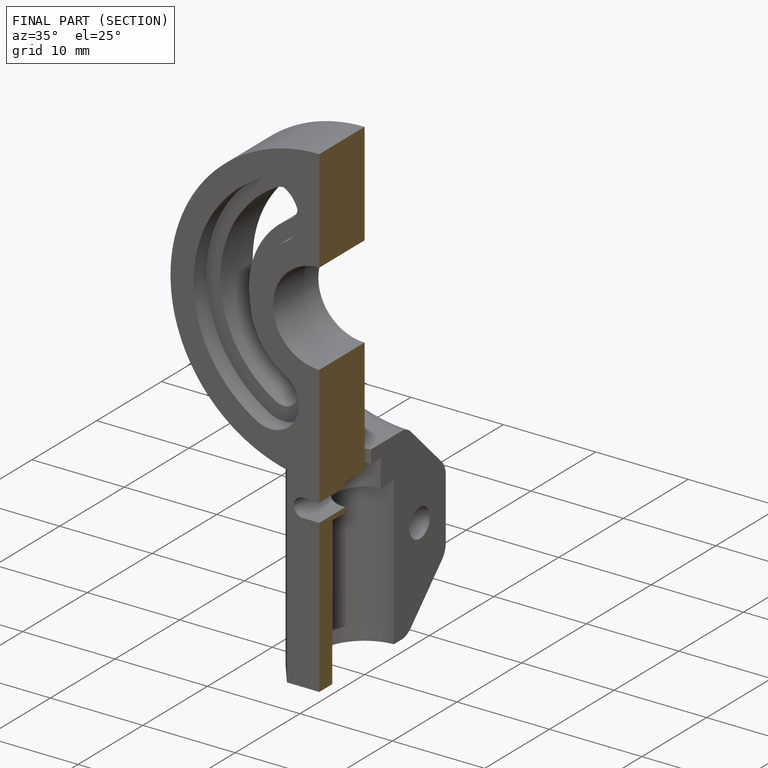
[diagram: finished part — half-section view (interior)]
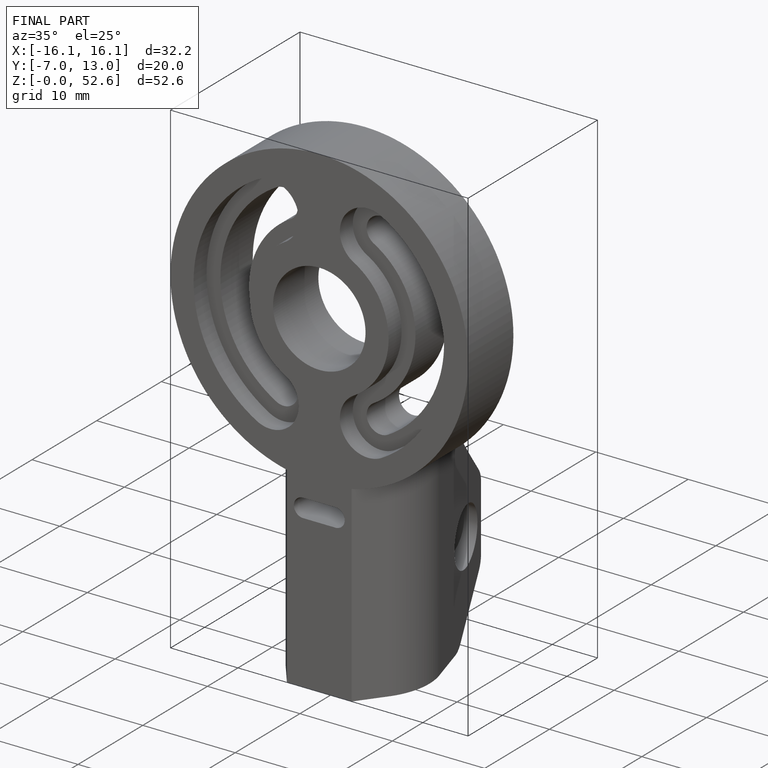
[diagram: finished part — iso view with bounding-box wireframe]
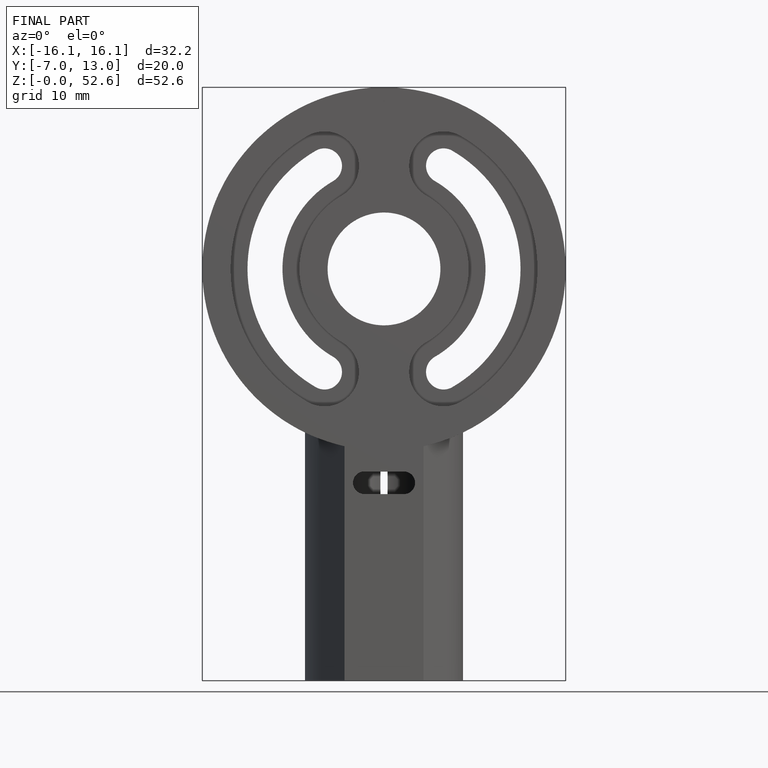
[diagram: finished part — front view with bounding-box wireframe]
